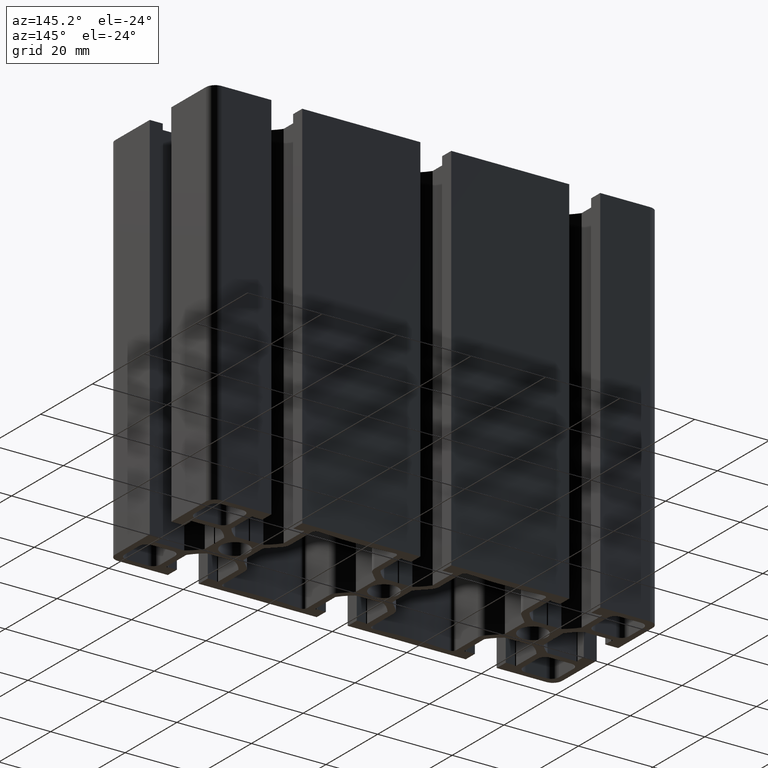
[diagram: clean part render]
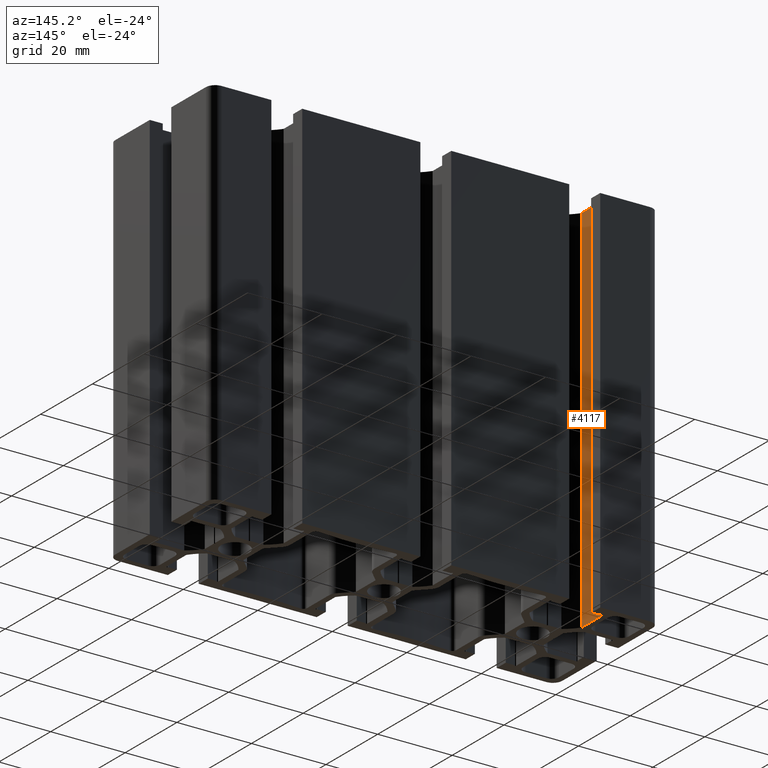
[diagram: same view with one face highlighted and labeled with its STEP entity id]
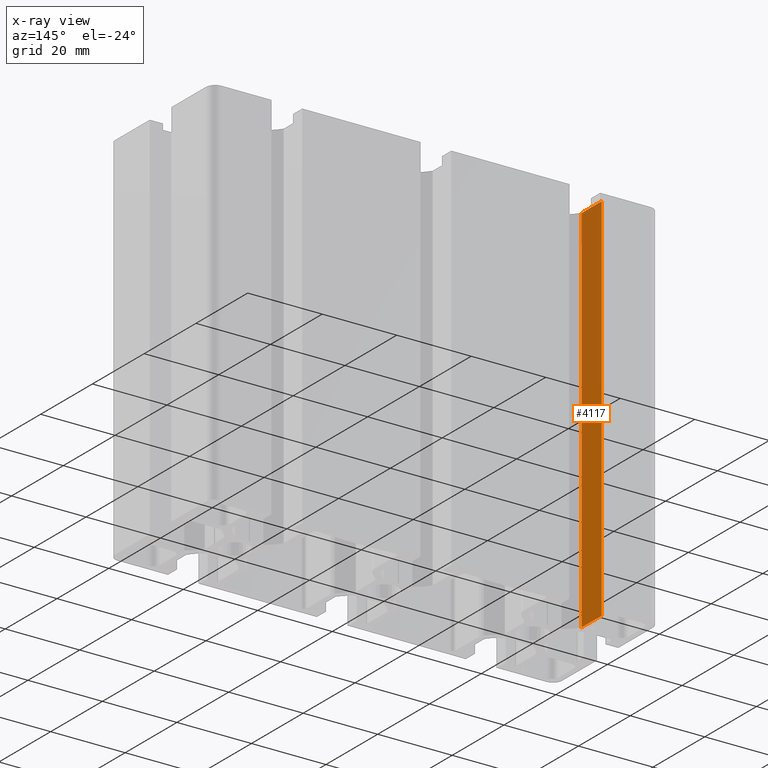
[diagram: x-ray of the same camera — body ghosted, the highlighted face saturated]
A machine part, auxiliary view. The second image highlights one B-rep face of the part: STEP entity #4117.
The next image is the same camera in x-ray: the body ghosted, the highlighted face saturated — about 0% of this face is hidden behind the body in this view.
In plain terms, the highlighted planar face has unit normal (1, 0, 0).
Its self-contained STEP definition (entity closure, byte-faithful):
#132=PLANE('',#4450);
#325=FACE_OUTER_BOUND('',#533,.T.);
#533=EDGE_LOOP('',(#3301,#3302,#3303,#3304));
#945=LINE('',#6642,#1401);
#946=LINE('',#6645,#1402);
#947=LINE('',#6647,#1403);
#948=LINE('',#6648,#1404);
#1401=VECTOR('',#5440,100.);
#1402=VECTOR('',#5443,7.80062327991342);
#1403=VECTOR('',#5444,7.80062327991342);
#1404=VECTOR('',#5445,100.);
#1977=VERTEX_POINT('',#6638);
#1978=VERTEX_POINT('',#6640);
#1979=VERTEX_POINT('',#6644);
#1980=VERTEX_POINT('',#6646);
#2539=EDGE_CURVE('',#1977,#1978,#945,.T.);
#2540=EDGE_CURVE('',#1979,#1977,#946,.T.);
#2541=EDGE_CURVE('',#1980,#1978,#947,.T.);
#2542=EDGE_CURVE('',#1979,#1980,#948,.T.);
#3301=ORIENTED_EDGE('',*,*,#2540,.T.);
#3302=ORIENTED_EDGE('',*,*,#2539,.T.);
#3303=ORIENTED_EDGE('',*,*,#2541,.F.);
#3304=ORIENTED_EDGE('',*,*,#2542,.F.);
#4117=ADVANCED_FACE('',(#325),#132,.T.);
#4450=AXIS2_PLACEMENT_3D('',#6643,#5441,#5442);
#5440=DIRECTION('',(0.,0.,1.));
#5441=DIRECTION('center_axis',(1.,0.,0.));
#5442=DIRECTION('ref_axis',(0.,1.,0.));
#5443=DIRECTION('',(0.,1.,0.));
#5444=DIRECTION('',(0.,1.,0.));
#5445=DIRECTION('',(0.,0.,1.));
#6638=CARTESIAN_POINT('',(-47.,16.5,0.));
#6640=CARTESIAN_POINT('',(-47.,16.5,100.));
#6642=CARTESIAN_POINT('',(-47.,16.5,0.));
#6643=CARTESIAN_POINT('Origin',(-47.,8.69937672008658,0.));
#6644=CARTESIAN_POINT('',(-47.,8.69937672008658,0.));
#6645=CARTESIAN_POINT('',(-47.,8.69937672008658,0.));
#6646=CARTESIAN_POINT('',(-47.,8.69937672008658,100.));
#6647=CARTESIAN_POINT('',(-47.,8.69937672008658,100.));
#6648=CARTESIAN_POINT('',(-47.,8.69937672008658,0.));